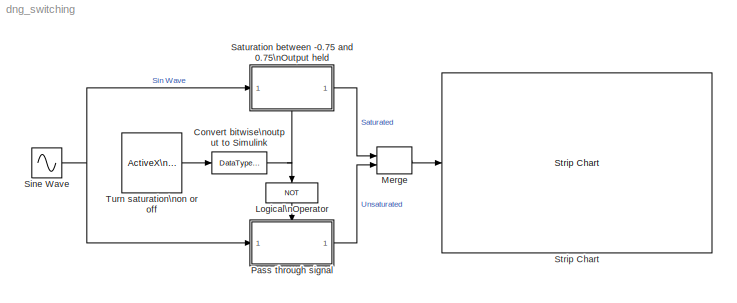
MODEL dng_switching
KIND model
CONFIG AbsTol = auto
CONFIG FixedStep = 1e-1
CONFIG MaxStep = auto
CONFIG MinStep = auto
CONFIG RelTol = 1e-3
CONFIG Solver = FixedStepDiscrete
CONFIG SolverMode = Auto
CONFIG StartTime = 0.0
CONFIG StopTime = inf
BLOCK [DataTypeConversion] Convert bitwise\noutput to Simulink
  DataType = boolean
BLOCK [Logic] Logical\nOperator
  Operator = NOT
  Ports = [1, 1]
BLOCK [Merge] Merge
  Ports = [2, 1]
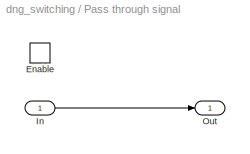
BLOCK [SubSystem] Pass through signal
  Ports = [1, 1, 1]
  TreatAsAtomicUnit = on
BLOCK [EnablePort] Pass through signal/Enable
  Ports = []
BLOCK [Inport] Pass through signal/In
BLOCK [Outport] Pass through signal/Out
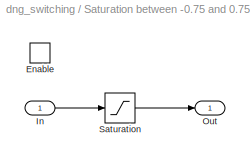
BLOCK [SubSystem] Saturation between -0.75 and 0.75\nOutput held
  Ports = [1, 1, 1]
  TreatAsAtomicUnit = on
BLOCK [EnablePort] Saturation between -0.75 and 0.75\nOutput held/Enable
  Ports = []
BLOCK [Inport] Saturation between -0.75 and 0.75\nOutput held/In
BLOCK [Outport] Saturation between -0.75 and 0.75\nOutput held/Out
BLOCK [Saturate] Saturation between -0.75 and 0.75\nOutput held/Saturation
  LowerLimit = -0.75
  UpperLimit = 0.75
BLOCK [Sin] Sine Wave
  SampleTime = 0
BLOCK [Reference] Strip Chart  REF=dng_gmslib/Strip Chart/Strip Chart
  AncestorBlock = dnglibv1/ActiveX\nControl
  Ports = [1]
  SourceBlock = dng_gmslib/Strip Chart/Strip Chart
  SourceType = ActiveX Block
  border = on
  connect = input
  dialOut = 0
  inblock = on
  init = hActx.TrackMin = -1.5; hActx.TrackDisplayMin = -1.5; hActx.TrackMax = 1.5; hActx.TrackDisplayMax = 1.5; hActx.XTicMode = 1; hActx.XSpan = 10/60/60/24; hActx.TimeSecondsFormat = '%M:%S'; hActx.TimeDateFormat = ''; hActx.TimeDaysFormat = ''; hActx.TimeHoursFormat = ''; hActx.TimeMinutesFormat = ''; hActx.TimeMonthsFormat = ''; hActx.TimeYearsFormat = ''; % Set x-axis to display time; set span = 10 s...<+63ch>
  progid = mwStrip.stripctrl.1
BLOCK [Reference] Turn saturation\non or off  REF=dnglibv1/ActiveX\nControl
  Ports = [0, 1]
  SourceBlock = dnglibv1/ActiveX\nControl
  SourceType = ActiveX Block
  border = on
  connect = output
  dialOut = 0
  dialOutEvent = Click
  inblock = on
  init = hActx.configuration='Toggle Switch\\Bitmap Toggles\\OnOff Switch';
  output = Value
  progid = mwtoggle.togglectrl.1
  updateParam = 0
NET Convert bitwise\noutput to Simulink:1 -> Logical\nOperator:1, Saturation between -0.75 and 0.75\nOutput held:enable
LINE Logical\nOperator:1 -> Pass through signal:enable
LINE Merge:1 -> Strip Chart:1
LINE Pass through signal/In:1 -> Pass through signal/Out:1
LINE Pass through signal:1 -> Merge:2
LINE Saturation between -0.75 and 0.75\nOutput held/In:1 -> Saturation between -0.75 and 0.75\nOutput held/Saturation:1
LINE Saturation between -0.75 and 0.75\nOutput held/Saturation:1 -> Saturation between -0.75 and 0.75\nOutput held/Out:1
LINE Saturation between -0.75 and 0.75\nOutput held:1 -> Merge:1
NET Sine Wave:1 -> Pass through signal:1, Saturation between -0.75 and 0.75\nOutput held:1
LINE Turn saturation\non or off:1 -> Convert bitwise\noutput to Simulink:1
note: NET lines group one-source signal fan-out (src -> all destinations, sorted); 1:1 wires keep LINE
